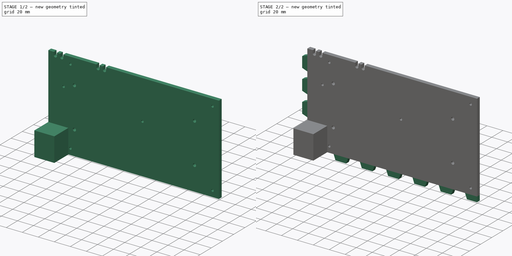
[diagram: build sequence overview — one tinted view per stage of 2, left to right]
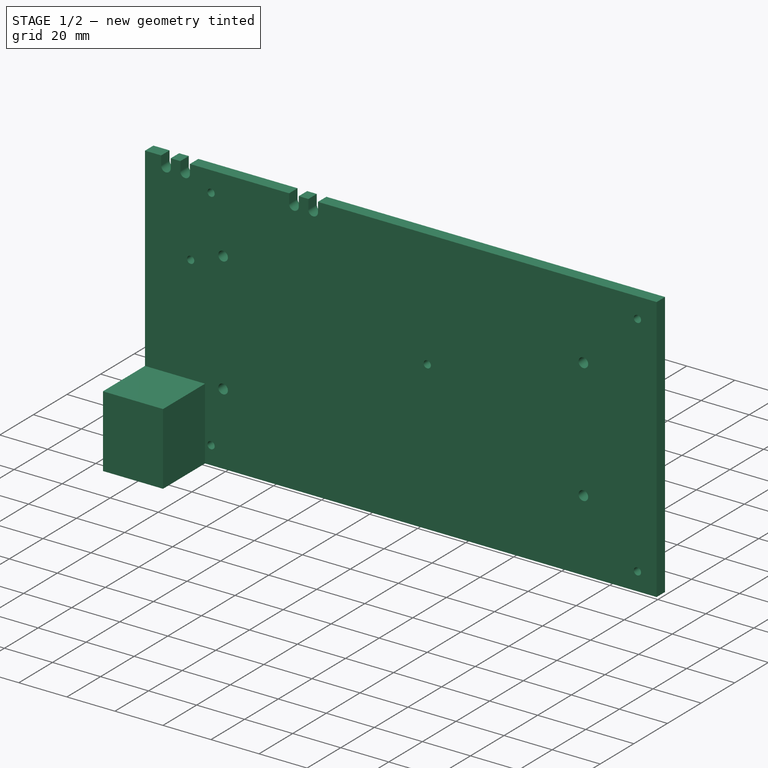
[diagram: stage 1 of 2 — iso view after this stage's code; geometry added in this stage tinted green]
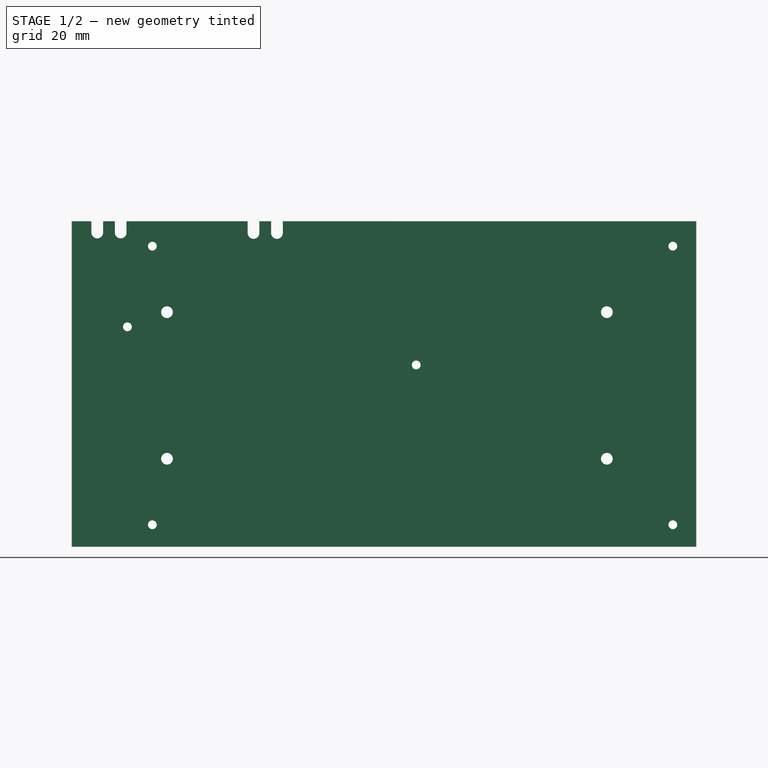
[diagram: stage 1 of 2 — front view after this stage's code; geometry added in this stage tinted green]
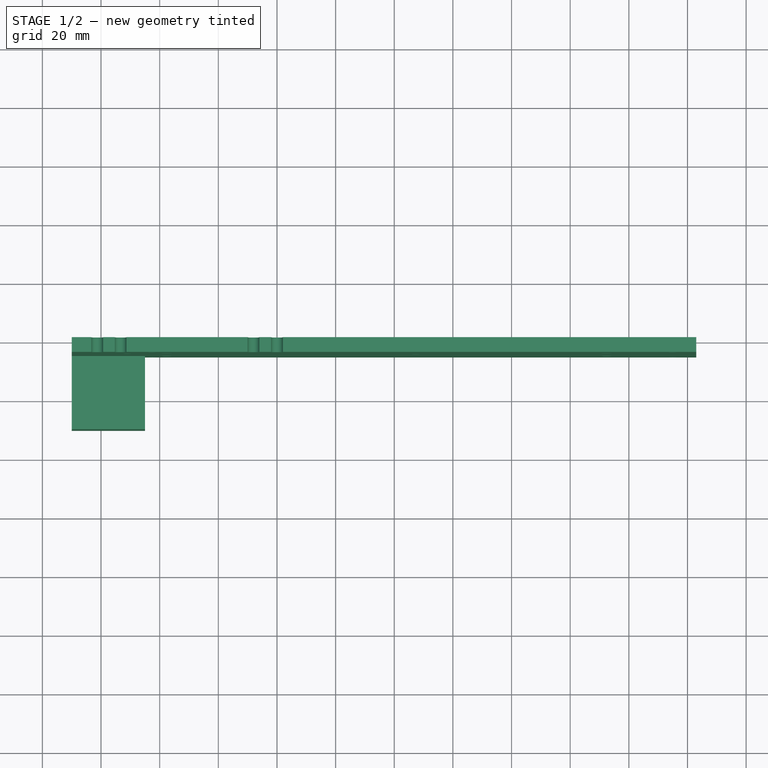
[diagram: stage 1 of 2 — top view after this stage's code; geometry added in this stage tinted green]
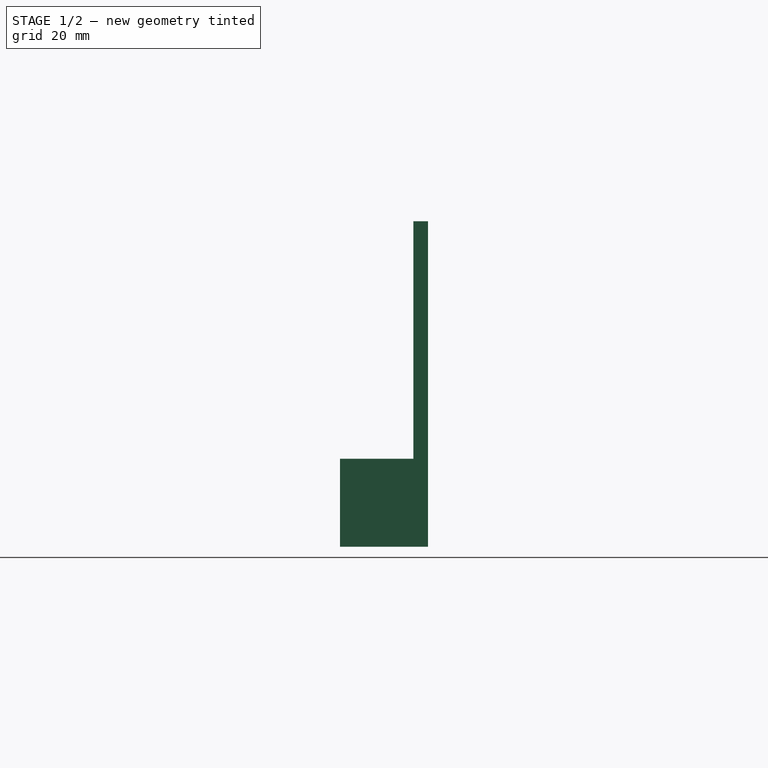
[diagram: stage 1 of 2 — right view after this stage's code; geometry added in this stage tinted green]
FCSTD DOCUMENT  (FreeCAD 0.22R38334 (Git))
Label: PSU001
License: All rights reserved
LicenseURL: http://en.wikipedia.org/wiki/All_rights_reserved
objects: PartDesign::Pad×3, PartDesign::SubShapeBinder×2, Sketcher::SketchObject×2, PartDesign::Body×2, App::Part×2, Part::Feature×1
note: 18 computed .brp shape members not serialized (recipe doc carries the construction recipe); baked Part::Feature solids carry a one-line shape summary decoded from their .brp

FEATURE [Part::Feature] Part__Feature  label="MEANWELL_LRS-350-24"
  shape: bbox 215.2 x 30.07 x 115 mm, 1466 faces (baked)
FEATURE [PartDesign::SubShapeBinder] Binder
  BindCopyOnChange = 0
  BindMode = 2
  ClaimChildren = false
  Context = -> Part [Body001.Binder.]
  Fuse = false
  MakeFace = true
  OffsetFill = false
  OffsetIntersection = false
  OffsetJoinType = 0
  OffsetOpenResult = false
  PartialLoad = false
  Placement = pos=(105,0,-58) rot=(0,0,1;0rad)
  Relative = true
  _Version = 2
FEATURE [PartDesign::Pad] Pad
  Direction = (0,-1,0)
  Length = 5
  Length2 = 10
  Placement = pos=(105,0,-58) rot=(0,0,1;0rad)
  Profile = -> Binder
  Suppressed = false
  Type = 0
FEATURE [PartDesign::Body] Body001
  AllowCompound = false
  Group = -> [Binder,Pad,Sketch001,Pad001]
  Origin = -> Origin002
  Tip = -> Pad001
FEATURE [App::Part] Part
  Group = -> [Body001]
  Origin = -> Origin001
FEATURE [PartDesign::SubShapeBinder] Binder001
  BindCopyOnChange = 0
  BindMode = 2
  ClaimChildren = false
  Context = -> Part [Body001.Binder001.]
  Fuse = false
  MakeFace = true
  OffsetFill = false
  OffsetIntersection = false
  OffsetJoinType = 0
  OffsetOpenResult = false
  PartialLoad = false
  Placement = pos=(105,0,-58) rot=(0,0,1;0rad)
  Relative = true
  _Version = 2
FEATURE [Sketcher::SketchObject] Sketch
  AttachmentSupport = -> [Binder001]
  ExternalGeometry = -> [Binder001]
  FullyConstrained = true
  MakeInternals = false
  MapMode = 5
  Placement = pos=(105,0,-58) rot=(1,0,0;1.5708rad)
  sketch-geometry (4):
    g0: LineSegment StartX=-215 StartY=31.5 StartZ=0 EndX=-215 EndY=1.5 EndZ=0
    g1: LineSegment StartX=-215 StartY=1.5 StartZ=0 EndX=-190 EndY=1.5 EndZ=0
    g2: LineSegment StartX=-190 StartY=1.5 StartZ=0 EndX=-190 EndY=31.5 EndZ=0
    g3: LineSegment StartX=-190 StartY=31.5 StartZ=0 EndX=-215 EndY=31.5 EndZ=0
  constraints (12):
    c: Coincident(g0,g1)
    c: Coincident(g1,g2)
    c: Coincident(g2,g3)
    c: Coincident(g3,g0)
    c: Vertical(g0)
    c: Vertical(g2)
    c: Horizontal(g1)
    c: Horizontal(g3)
    c: PointOnObject(g0,g-3)
    c: PointOnObject(g1,g-5)
    c: DistanceY(g0,g0) = 30
    c: DistanceX(g3,g3) = 25
FEATURE [PartDesign::Pad] Pad002
  Direction = (0,-1,2e-16)
  Length = 30
  Length2 = 10
  Placement = pos=(105,0,-58) rot=(0,0,1;0rad)
  Profile = -> Sketch
  ReferenceAxis = -> Sketch [N_Axis]
  Suppressed = false
  Type = 0
FEATURE [PartDesign::Body] Body
  AllowCompound = false
  Group = -> [Binder001,Sketch,Pad002]
  Origin = -> Origin003
  Tip = -> Pad002
FEATURE [App::Part] Part001
  Group = -> [Body]
  Origin = -> Origin
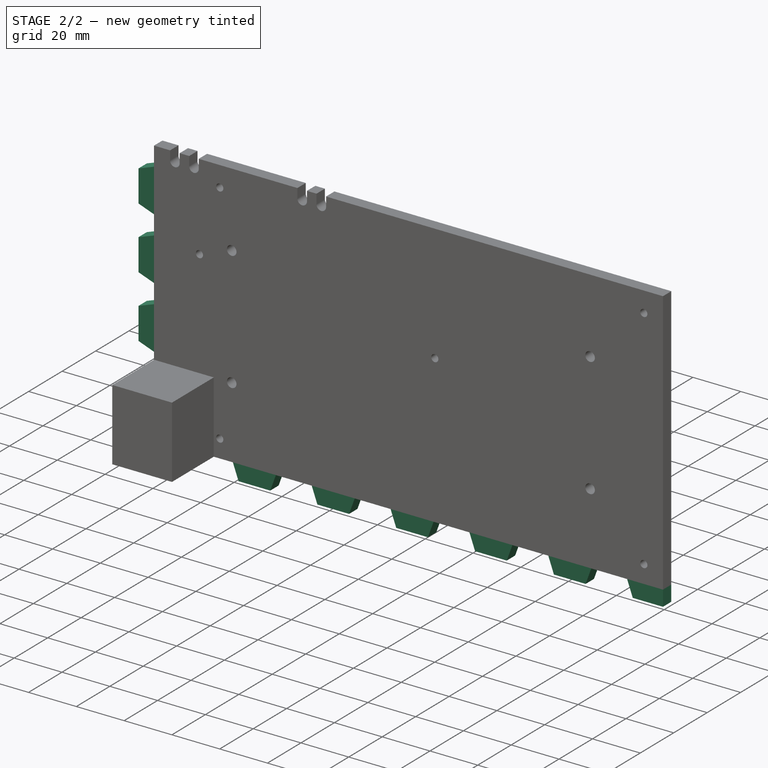
[diagram: stage 2 of 2 — iso view after this stage's code; geometry added in this stage tinted green]
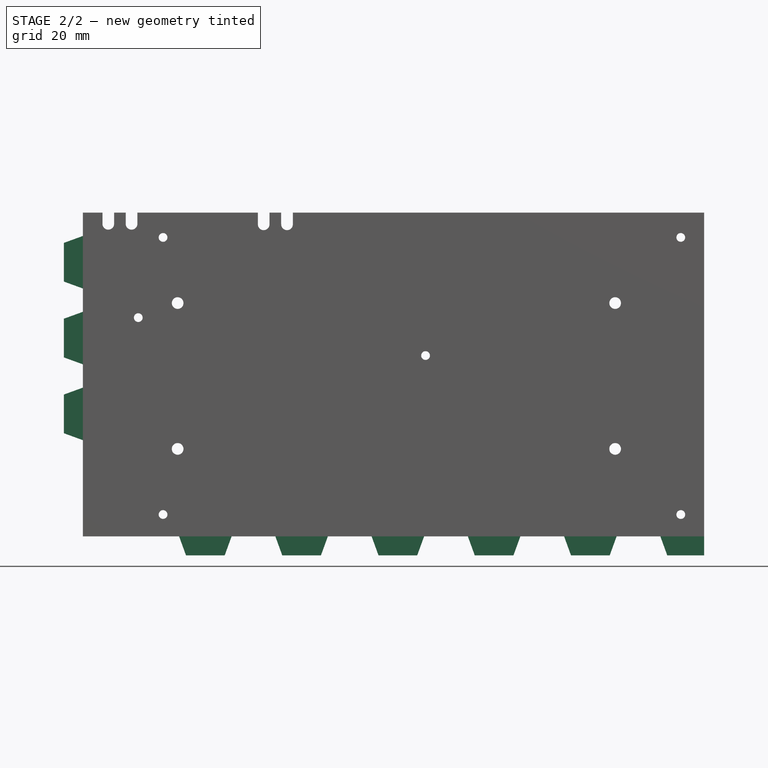
[diagram: stage 2 of 2 — front view after this stage's code; geometry added in this stage tinted green]
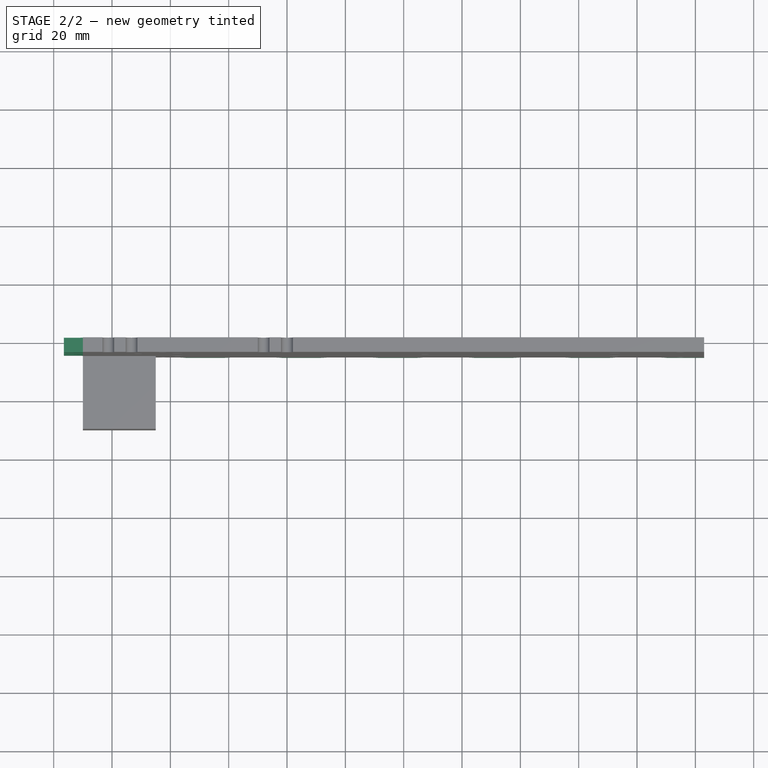
[diagram: stage 2 of 2 — top view after this stage's code; geometry added in this stage tinted green]
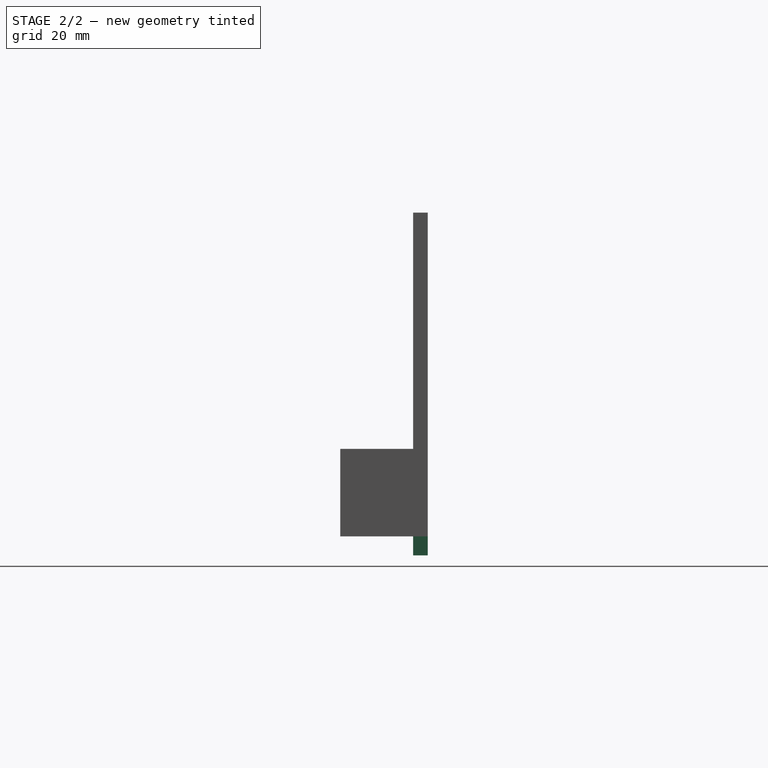
[diagram: stage 2 of 2 — right view after this stage's code; geometry added in this stage tinted green]
FEATURE [Sketcher::SketchObject] Sketch001
  AttachmentSupport = -> [Binder]
  ExternalGeometry = -> [Binder]
  FullyConstrained = true
  MakeInternals = false
  MapMode = 5
  Placement = pos=(105,0,-58) rot=(1,0,0;1.5708rad)
  sketch-geometry (49):
    g0: LineSegment StartX=-215 StartY=104.5 StartZ=0 EndX=-221.5 EndY=102.134 EndZ=0
    g1: LineSegment StartX=-221.5 StartY=102.134 StartZ=0 EndX=-221.5 EndY=88.8658 EndZ=0
    g2: LineSegment StartX=-221.5 StartY=88.8658 StartZ=0 EndX=-215 EndY=86.5 EndZ=0
    g3: LineSegment StartX=-215 StartY=86.5 StartZ=0 EndX=-215 EndY=104.5 EndZ=0
    g4: LineSegment StartX=-221.5 StartY=95.5 StartZ=0 EndX=-215 EndY=95.5 EndZ=0
    g5: LineSegment StartX=-215 StartY=78.5 StartZ=0 EndX=-221.5 EndY=76.1342 EndZ=0
    g6: LineSegment StartX=-221.5 StartY=76.1342 StartZ=0 EndX=-221.5 EndY=62.8658 EndZ=0
    g7: LineSegment StartX=-221.5 StartY=62.8658 StartZ=0 EndX=-215 EndY=60.5 EndZ=0
    g8: LineSegment StartX=-215 StartY=60.5 StartZ=0 EndX=-215 EndY=78.5 EndZ=0
    g9: LineSegment StartX=-221.5 StartY=69.5 StartZ=0 EndX=-215 EndY=69.5 EndZ=0
    g10: LineSegment StartX=-215 StartY=52.5 StartZ=0 EndX=-221.5 EndY=50.1342 EndZ=0
    g11: LineSegment StartX=-221.5 StartY=50.1342 StartZ=0 EndX=-221.5 EndY=36.8658 EndZ=0
    g12: LineSegment StartX=-221.5 StartY=36.8658 StartZ=0 EndX=-215 EndY=34.5 EndZ=0
    g13: LineSegment StartX=-215 StartY=34.5 StartZ=0 EndX=-215 EndY=52.5 EndZ=0
    g14: LineSegment StartX=-221.5 StartY=43.5 StartZ=0 EndX=-215 EndY=43.5 EndZ=0
    g15: LineSegment StartX=-182 StartY=1.5 StartZ=0 EndX=-179.634 EndY=-5 EndZ=0
    g16: LineSegment StartX=-179.634 StartY=-5 StartZ=0 EndX=-166.366 EndY=-5 EndZ=0
    g17: LineSegment StartX=-166.366 StartY=-5 StartZ=0 EndX=-164 EndY=1.5 EndZ=0
    g18: LineSegment StartX=-164 StartY=1.5 StartZ=0 EndX=-182 EndY=1.5 EndZ=0
    g19: LineSegment StartX=-173 StartY=1.5 StartZ=0 EndX=-173 EndY=-5 EndZ=0
    g20: LineSegment StartX=-215 StartY=34.5 StartZ=0 EndX=-215 EndY=1.5 EndZ=0
    g21: LineSegment StartX=-215 StartY=1.5 StartZ=0 EndX=-182 EndY=1.5 EndZ=0
    g22: LineSegment StartX=-215 StartY=34.5 StartZ=0 EndX=-215 EndY=1.5 EndZ=0
    g23: LineSegment StartX=-215 StartY=1.5 StartZ=0 EndX=-182 EndY=1.5 EndZ=0
    g24: LineSegment StartX=-215 StartY=1.5 StartZ=0 EndX=-2 EndY=1.5 EndZ=0
    g25: LineSegment StartX=-149 StartY=1.5 StartZ=0 EndX=-146.634 EndY=-5 EndZ=0
    g26: LineSegment StartX=-146.634 StartY=-5 StartZ=0 EndX=-133.366 EndY=-5 EndZ=0
    g27: LineSegment StartX=-133.366 StartY=-5 StartZ=0 EndX=-131 EndY=1.5 EndZ=0
    g28: LineSegment StartX=-131 StartY=1.5 StartZ=0 EndX=-149 EndY=1.5 EndZ=0
    g29: LineSegment StartX=-140 StartY=1.5 StartZ=0 EndX=-140 EndY=-5 EndZ=0
    g30: LineSegment StartX=-116 StartY=1.5 StartZ=0 EndX=-113.634 EndY=-5 EndZ=0
    g31: LineSegment StartX=-113.634 StartY=-5 StartZ=0 EndX=-100.366 EndY=-5 EndZ=0
    g32: LineSegment StartX=-100.366 StartY=-5 StartZ=0 EndX=-98 EndY=1.5 EndZ=0
    g33: LineSegment StartX=-98 StartY=1.5 StartZ=0 EndX=-116 EndY=1.5 EndZ=0
    g34: LineSegment StartX=-107 StartY=1.5 StartZ=0 EndX=-107 EndY=-5 EndZ=0
    g35: LineSegment StartX=-83 StartY=1.5 StartZ=0 EndX=-80.6342 EndY=-5 EndZ=0
    g36: LineSegment StartX=-80.6342 StartY=-5 StartZ=0 EndX=-67.3658 EndY=-5 EndZ=0
    g37: LineSegment StartX=-67.3658 StartY=-5 StartZ=0 EndX=-65 EndY=1.5 EndZ=0
    g38: LineSegment StartX=-65 StartY=1.5 StartZ=0 EndX=-83 EndY=1.5 EndZ=0
    g39: LineSegment StartX=-74 StartY=1.5 StartZ=0 EndX=-74 EndY=-5 EndZ=0
    g40: LineSegment StartX=-50 StartY=1.5 StartZ=0 EndX=-47.6342 EndY=-5 EndZ=0
    g41: LineSegment StartX=-47.6342 StartY=-5 StartZ=0 EndX=-34.3658 EndY=-5 EndZ=0
    g42: LineSegment StartX=-34.3658 StartY=-5 StartZ=0 EndX=-32 EndY=1.5 EndZ=0
    g43: LineSegment StartX=-32 StartY=1.5 StartZ=0 EndX=-50 EndY=1.5 EndZ=0
    g44: LineSegment StartX=-41 StartY=1.5 StartZ=0 EndX=-41 EndY=-5 EndZ=0
    g45: LineSegment StartX=-2 StartY=1.5 StartZ=0 EndX=-2 EndY=-5 EndZ=0
    g46: LineSegment StartX=-2 StartY=-5 StartZ=0 EndX=-14.6342 EndY=-5 EndZ=0
    g47: LineSegment StartX=-14.6342 StartY=-5 StartZ=0 EndX=-17 EndY=1.5 EndZ=0
    g48: LineSegment StartX=-17 StartY=1.5 StartZ=0 EndX=-2 EndY=1.5 EndZ=0
  constraints (133):
    c: PointOnObject(g0,g-3)
    c: Coincident(g0,g1)
    c: Vertical(g1)
    c: Coincident(g1,g2)
    c: PointOnObject(g2,g-3)
    c: Coincident(g2,g3)
    c: Coincident(g3,g0)
    c: DistanceY(g3,g3) = 18
    c: Angle(g1,g0) = 1.91986
    c: Symmetric(g1,g1,g4)
    c: Horizontal(g4)
    c: Symmetric(g3,g3,g4)
    c: Distance(g1,g3) = 6.5
    c: DistanceY(g0,g-3) = 8
    c: Coincident(g5,g6)
    c: Coincident(g10,g11)
    c: Vertical(g6)
    c: Vertical(g11)
    c: Coincident(g6,g7)
    c: Coincident(g11,g12)
    c: Coincident(g7,g8)
    c: Coincident(g12,g13)
    c: Coincident(g8,g5)
    c: Coincident(g13,g10)
    c: DistanceY(g8,g8) = 18
    c: DistanceY(g13,g13) = 18
    c: Angle(g6,g5) = 1.91986
    c: Angle(g11,g10) = 1.91986
    c: Symmetric(g6,g6,g9)
    c: Symmetric(g11,g11,g14)
    c: Horizontal(g9)
    c: Horizontal(g14)
    c: Symmetric(g8,g8,g9)
    c: Symmetric(g13,g13,g14)
    c: Distance(g6,g8) = 6.5
    c: Distance(g11,g13) = 6.5
    c: Vertical(g8)
    c: DistanceY(g5,g2) = 8
    c: DistanceY(g10,g7) = 8
    c: Coincident(g15,g16)
    c: Coincident(g16,g17)
    c: Coincident(g17,g18)
    c: Coincident(g18,g15)
    c: Equal(g13,g18)
    c: Symmetric(g18,g18,g19)
    c: Symmetric(g16,g16,g19)
    c: Vertical(g19)
    c: Horizontal(g16)
    c: Angle(g16,g15) = 1.91986
    c: DistanceY(g16,g17) = 6.5
    c: DistanceX(g18,g18) = 18
    c: Coincident(g12,g20)
    c: Vertical(g20)
    c: Coincident(g20,g21)
    c: Coincident(g21,g15)
    c: Horizontal(g21)
    c: Coincident(g20,g-3)
    c: Coincident(g12,g22)
    c: Coincident(g22,g20)
    c: Coincident(g22,g23)
    c: Coincident(g23,g15)
    c: Equal(g21,g20)
    c: Coincident(g24,g20)
    c: Coincident(g24,g-4)
    c: PointOnObject(g17,g24)
    c: PointOnObject(g5,g-3)
    c: Coincident(g25,g26)
    c: Coincident(g30,g31)
    c: Coincident(g35,g36)
    c: Coincident(g40,g41)
    c: Coincident(g26,g27)
    c: Coincident(g31,g32)
    c: Coincident(g36,g37)
    c: Coincident(g41,g42)
    c: Coincident(g27,g28)
    c: Coincident(g32,g33)
    c: Coincident(g37,g38)
    c: Coincident(g42,g43)
    c: Coincident(g28,g25)
    c: Coincident(g33,g30)
    c: Coincident(g38,g35)
    c: Coincident(g43,g40)
    c: Symmetric(g28,g28,g29)
    c: Symmetric(g33,g33,g34)
    c: Symmetric(g38,g38,g39)
    c: Symmetric(g43,g43,g44)
    c: Symmetric(g26,g26,g29)
    c: Symmetric(g31,g31,g34)
    c: Symmetric(g36,g36,g39)
    c: Symmetric(g41,g41,g44)
    c: Vertical(g29)
    c: Vertical(g34)
    c: Vertical(g39)
    c: Vertical(g44)
    c: Horizontal(g26)
    c: Horizontal(g31)
    c: Horizontal(g36)
    c: Horizontal(g41)
    c: Angle(g26,g25) = 1.91986
    c: Angle(g31,g30) = 1.91986
    c: Angle(g36,g35) = 1.91986
    c: Angle(g41,g40) = 1.91986
    c: DistanceY(g26,g27) = 6.5
    c: DistanceY(g31,g32) = 6.5
    c: DistanceY(g36,g37) = 6.5
    c: DistanceY(g41,g42) = 6.5
    c: DistanceX(g28,g28) = 18
    c: DistanceX(g33,g33) = 18
    c: DistanceX(g38,g38) = 18
    c: DistanceX(g43,g43) = 18
    c: DistanceX(g17,g25) = 15
    c: DistanceX(g27,g30) = 15
    c: DistanceX(g32,g35) = 15
    c: DistanceX(g37,g40) = 15
    c: PointOnObject(g25,g24)
    c: PointOnObject(g27,g24)
    c: PointOnObject(g32,g24)
    c: PointOnObject(g30,g24)
    c: PointOnObject(g35,g24)
    c: PointOnObject(g37,g24)
    c: PointOnObject(g40,g24)
    c: PointOnObject(g42,g24)
    c: Coincident(g24,g45)
    c: Vertical(g45)
    c: Coincident(g45,g46)
    c: Horizontal(g46)
    c: Coincident(g46,g47)
    c: PointOnObject(g47,g24)
    c: Coincident(g47,g48)
    c: Coincident(g48,g24)
    c: DistanceY(g45,g45) = 6.5
    c: Angle(g46,g47) = 1.91986
    c: DistanceX(g42,g47) = 15
FEATURE [PartDesign::Pad] Pad001
  BaseFeature = -> Pad
  Direction = (0,-1,2e-16)
  Length = 5
  Length2 = 10
  Placement = pos=(105,0,-58) rot=(0,0,1;0rad)
  Profile = -> Sketch001
  ReferenceAxis = -> Sketch001 [N_Axis]
  Suppressed = false
  Type = 0
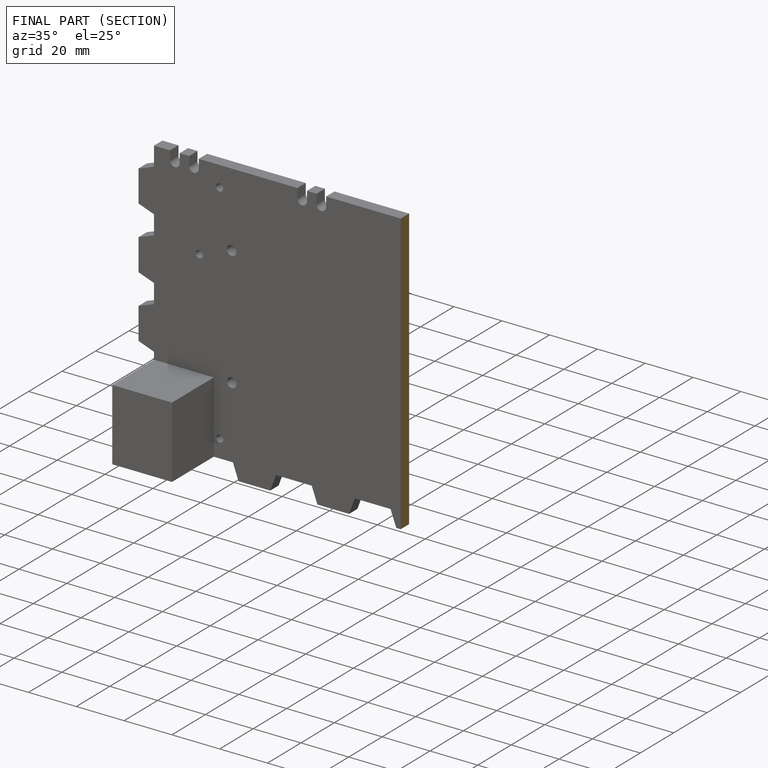
[diagram: finished part — half-section view (interior)]
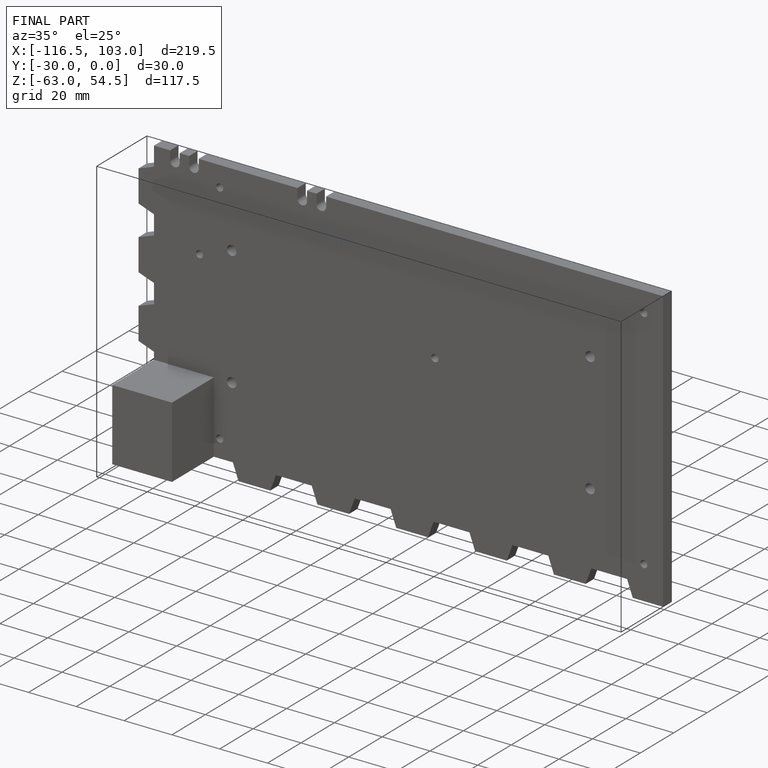
[diagram: finished part — iso view with bounding-box wireframe]
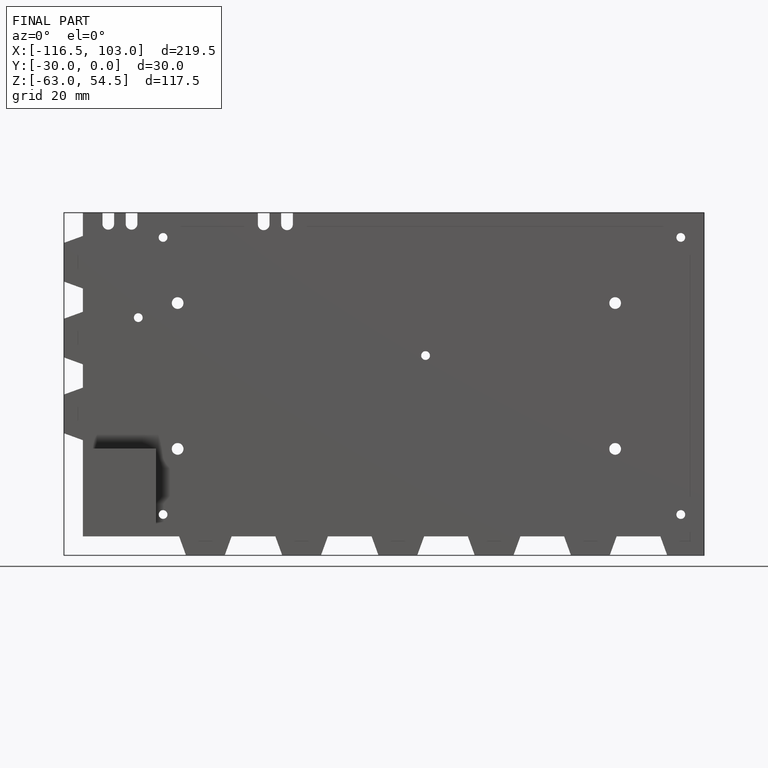
[diagram: finished part — front view with bounding-box wireframe]
